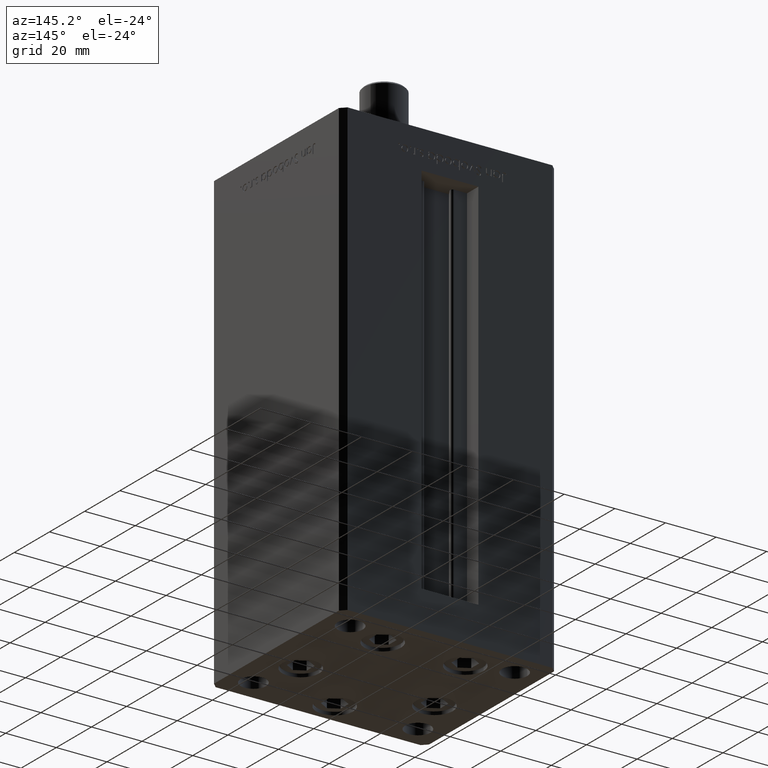
[diagram: clean part render]
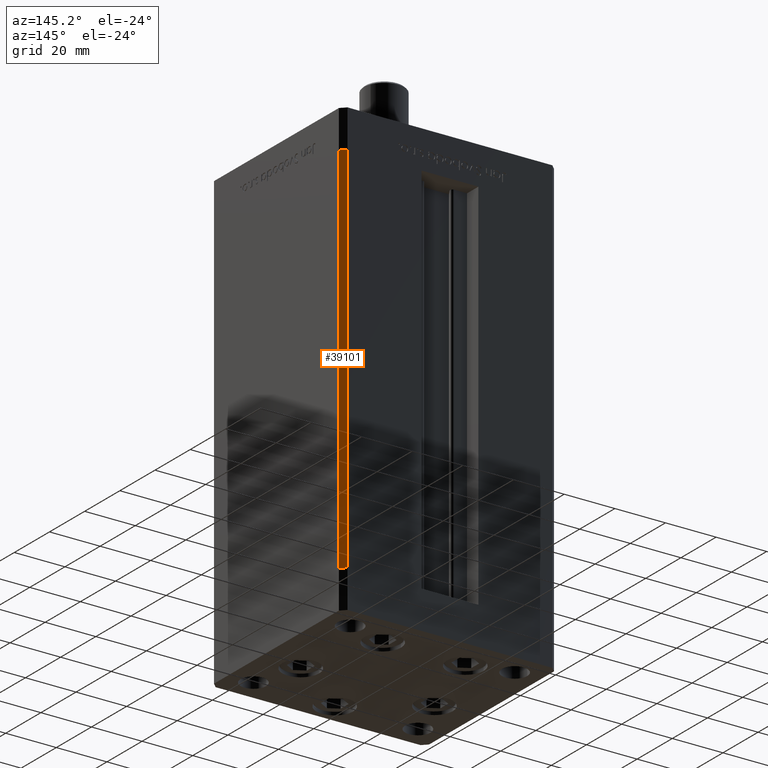
[diagram: same view with one face highlighted and labeled with its STEP entity id]
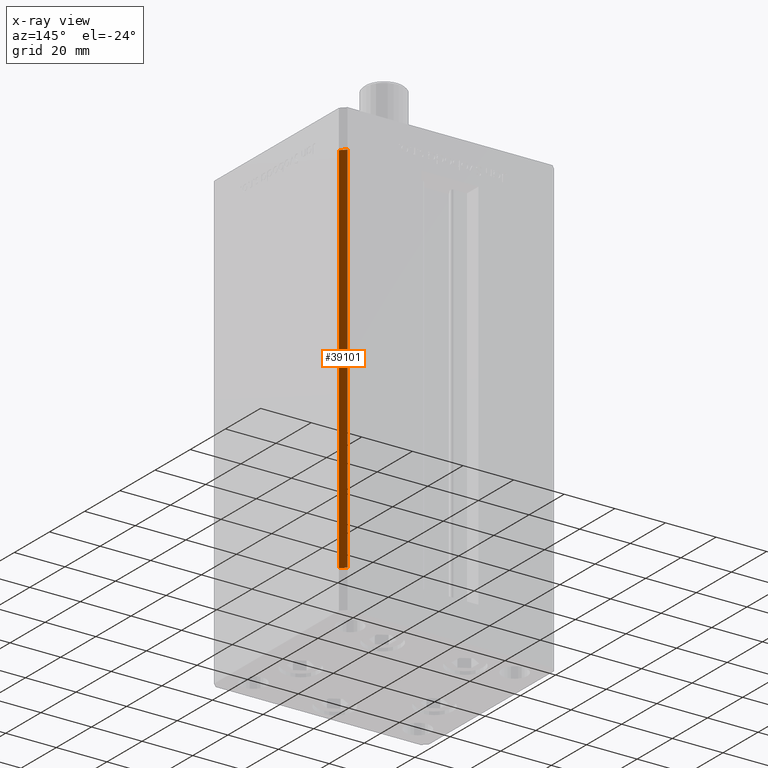
[diagram: x-ray of the same camera — body ghosted, the highlighted face saturated]
A machine part, auxiliary view. The second image highlights one B-rep face of the part: STEP entity #39101.
The next image is the same camera in x-ray: the body ghosted, the highlighted face saturated — about 0% of this face is hidden behind the body in this view.
In plain terms, the highlighted planar face has unit normal (0.7071, 0.7071, 0).
Its self-contained STEP definition (entity closure, byte-faithful):
#469 = EDGE_LOOP ( 'NONE', ( #41098, #46097, #9659, #11684 ) ) ;
#1045 = VECTOR ( 'NONE', #7424, 1000.000000000000114 ) ;
#3307 = EDGE_CURVE ( 'NONE', #30392, #30779, #38092, .T. ) ;
#5373 = CARTESIAN_POINT ( 'NONE',  ( 42.50000000000000711, 35.50000000000001421, 0.000000000000000000 ) ) ;
#5522 = EDGE_CURVE ( 'NONE', #48708, #41738, #35134, .T. ) ;
#7424 = DIRECTION ( 'NONE',  ( 0.7071067811865500152, -0.7071067811865451302, 0.000000000000000000 ) ) ;
#9659 = ORIENTED_EDGE ( 'NONE', *, *, #41739, .T. ) ;
#11684 = ORIENTED_EDGE ( 'NONE', *, *, #3307, .T. ) ;
#13973 = CARTESIAN_POINT ( 'NONE',  ( 42.50000000000000711, 35.50000000000001421, 148.5000000000000000 ) ) ;
#15822 = DIRECTION ( 'NONE',  ( 0.7071067811865500152, -0.7071067811865451302, 0.000000000000000000 ) ) ;
#16459 = VECTOR ( 'NONE', #38872, 1000.000000000000000 ) ;
#17189 = DIRECTION ( 'NONE',  ( -0.7071067811865500152, 0.7071067811865451302, 0.000000000000000000 ) ) ;
#18683 = CARTESIAN_POINT ( 'NONE',  ( 40.50000000000000000, 37.50000000000000711, 148.5000000000000000 ) ) ;
#24287 = CARTESIAN_POINT ( 'NONE',  ( 40.50000000000000000, 37.50000000000000711, 148.5000000000000000 ) ) ;
#25926 = PLANE ( 'NONE',  #30096 ) ;
#27218 = LINE ( 'NONE', #24287, #34372 ) ;
#29386 = FACE_OUTER_BOUND ( 'NONE', #469, .T. ) ;
#29896 = CARTESIAN_POINT ( 'NONE',  ( 40.50000000000000000, 37.50000000000000711, 148.5000000000000000 ) ) ;
#29937 = CARTESIAN_POINT ( 'NONE',  ( 40.50000000000000000, 37.50000000000000711, 148.5000000000000000 ) ) ;
#30096 = AXIS2_PLACEMENT_3D ( 'NONE', #29896, #46061, #17189 ) ;
#30392 = VERTEX_POINT ( 'NONE', #44241 ) ;
#30779 = VERTEX_POINT ( 'NONE', #5373 ) ;
#34372 = VECTOR ( 'NONE', #15822, 1000.000000000000114 ) ;
#34860 = DIRECTION ( 'NONE',  ( -0.000000000000000000, -0.000000000000000000, -1.000000000000000000 ) ) ;
#35134 = LINE ( 'NONE', #18683, #41104 ) ;
#38092 = LINE ( 'NONE', #13973, #16459 ) ;
#38872 = DIRECTION ( 'NONE',  ( -0.000000000000000000, -0.000000000000000000, -1.000000000000000000 ) ) ;
#38985 = LINE ( 'NONE', #47460, #1045 ) ;
#39101 = ADVANCED_FACE ( 'NONE', ( #29386 ), #25926, .T. ) ;
#41098 = ORIENTED_EDGE ( 'NONE', *, *, #46880, .F. ) ;
#41104 = VECTOR ( 'NONE', #34860, 1000.000000000000000 ) ;
#41738 = VERTEX_POINT ( 'NONE', #44431 ) ;
#41739 = EDGE_CURVE ( 'NONE', #48708, #30392, #27218, .T. ) ;
#44241 = CARTESIAN_POINT ( 'NONE',  ( 42.50000000000000711, 35.50000000000001421, 148.5000000000000000 ) ) ;
#44431 = CARTESIAN_POINT ( 'NONE',  ( 40.50000000000000000, 37.50000000000000711, 0.000000000000000000 ) ) ;
#46061 = DIRECTION ( 'NONE',  ( 0.7071067811865451302, 0.7071067811865500152, -0.000000000000000000 ) ) ;
#46097 = ORIENTED_EDGE ( 'NONE', *, *, #5522, .F. ) ;
#46880 = EDGE_CURVE ( 'NONE', #41738, #30779, #38985, .T. ) ;
#47460 = CARTESIAN_POINT ( 'NONE',  ( 40.50000000000000000, 37.50000000000000711, 0.000000000000000000 ) ) ;
#48708 = VERTEX_POINT ( 'NONE', #29937 ) ;